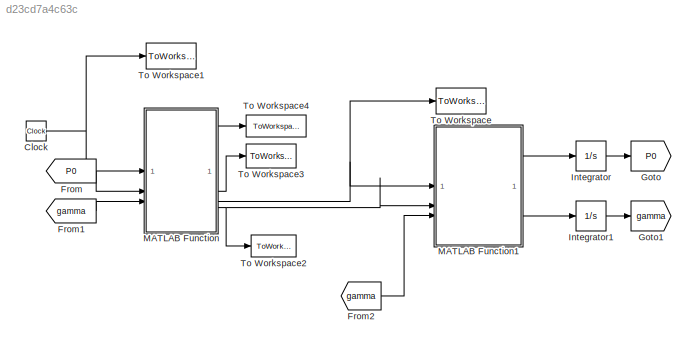
MODEL slx_d23cd7a4c63c
KIND model
CONFIG AbsTol = auto
CONFIG EnableMultiTasking = off
CONFIG FixedStep = auto
CONFIG MaxStep = auto
CONFIG MinStep = auto
CONFIG RelTol = 1e-3
CONFIG SampleTimeConstraint = Unconstrained
CONFIG SolverName = VariableStepAuto
CONFIG StartTime = 0.0
CONFIG StopTime = 10.0
BLOCK [Clock] Clock
BLOCK [From] From
  GotoTag = P0
BLOCK [From] From1
  GotoTag = gamma
BLOCK [From] From2
  GotoTag = gamma
BLOCK [Goto] Goto
  GotoTag = P0
BLOCK [Goto] Goto1
  GotoTag = gamma
BLOCK [Integrator] Integrator
BLOCK [Integrator] Integrator1
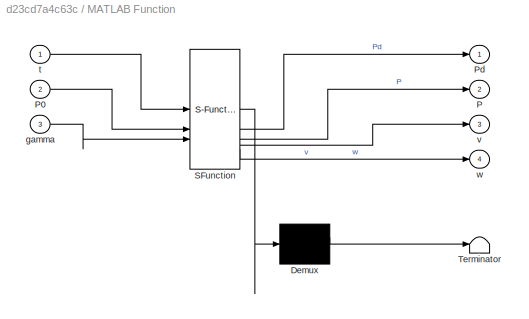
BLOCK [SubSystem] MATLAB Function
  ErrorFcn = Stateflow.Translate.translate
  PermitHierarchicalResolution = ExplicitOnly
  SFBlockType = MATLAB Function
  TreatAsAtomicUnit = on
BLOCK [Demux] MATLAB Function/ Demux 
  Outputs = 1
BLOCK [S-Function] MATLAB Function/ SFunction 
  EnableBusSupport = off
  FunctionName = sf_sfun
  PortCounts = [3 5]
  SFcnIsStateOwnerBlock = off
  SFunctionDeploymentMode = off
  Tag = Stateflow S-Function 2
BLOCK [Terminator] MATLAB Function/ Terminator 
BLOCK [Outport] MATLAB Function/P
  Port = 2
BLOCK [Inport] MATLAB Function/P0
  Port = 2
BLOCK [Outport] MATLAB Function/Pd
BLOCK [Inport] MATLAB Function/gamma
  Port = 3
BLOCK [Inport] MATLAB Function/t
BLOCK [Outport] MATLAB Function/v
  Port = 3
BLOCK [Outport] MATLAB Function/w
  Port = 4
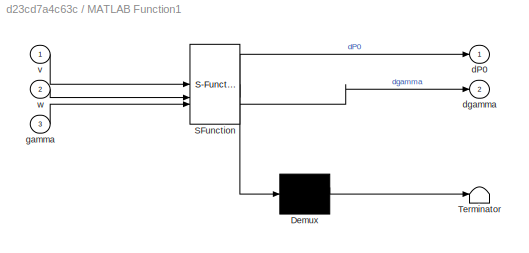
BLOCK [SubSystem] MATLAB Function1
  ErrorFcn = Stateflow.Translate.translate
  PermitHierarchicalResolution = ExplicitOnly
  SFBlockType = MATLAB Function
  TreatAsAtomicUnit = on
BLOCK [Demux] MATLAB Function1/ Demux 
  Outputs = 1
BLOCK [S-Function] MATLAB Function1/ SFunction 
  EnableBusSupport = off
  FunctionName = sf_sfun
  PortCounts = [3 3]
  SFcnIsStateOwnerBlock = off
  SFunctionDeploymentMode = off
  Tag = Stateflow S-Function 1
BLOCK [Terminator] MATLAB Function1/ Terminator 
BLOCK [Outport] MATLAB Function1/dP0
BLOCK [Outport] MATLAB Function1/dgamma
  Port = 2
BLOCK [Inport] MATLAB Function1/gamma
  Port = 3
BLOCK [Inport] MATLAB Function1/v
BLOCK [Inport] MATLAB Function1/w
  Port = 2
BLOCK [ToWorkspace] To Workspace
  FixptAsFi = on
  MaxDataPoints = inf
  SampleTime = -1
  VariableName = v
BLOCK [ToWorkspace] To Workspace1
  FixptAsFi = on
  MaxDataPoints = inf
  SampleTime = -1
  VariableName = t
BLOCK [ToWorkspace] To Workspace2
  FixptAsFi = on
  MaxDataPoints = inf
  SampleTime = -1
  VariableName = w
BLOCK [ToWorkspace] To Workspace3
  FixptAsFi = on
  MaxDataPoints = inf
  SampleTime = -1
  VariableName = P
BLOCK [ToWorkspace] To Workspace4
  FixptAsFi = on
  MaxDataPoints = inf
  SampleTime = -1
  VariableName = Pd
NET Clock:1 -> MATLAB Function:1, To Workspace1:1
LINE From1:1 -> MATLAB Function:3
LINE From2:1 -> MATLAB Function1:3
LINE From:1 -> MATLAB Function:2
LINE Integrator1:1 -> Goto1:1
LINE Integrator:1 -> Goto:1
LINE MATLAB Function1:1 -> Integrator:1
LINE MATLAB Function1:2 -> Integrator1:1
LINE MATLAB Function:1 -> To Workspace4:1
LINE MATLAB Function:2 -> To Workspace3:1
NET MATLAB Function:3 -> MATLAB Function1:1, To Workspace:1
NET MATLAB Function:4 -> MATLAB Function1:2, To Workspace2:1
note: NET lines group one-source signal fan-out (src -> all destinations, sorted); 1:1 wires keep LINE
CHART MATLAB Function1 states=1 transitions=1
  STATE_LABEL 'eML_blk_kernel()'
  STATE_LABEL 'SCRIPT:\nfunction [dP0, dgamma] = SNL(v, w, gamma)\ndP0 = [v*cos(gamma); v*sin(gamma)];\ndgamma = w;\n'
CHART MATLAB Function states=1 transitions=1
  STATE_LABEL 'eML_blk_kernel()'
  STATE_LABEL 'SCRIPT:\nfunction [Pd, P, v, w] = POut(t, P0, gamma)\n% Control PD del unicíclo tomando punto por fuera\n\n% Parámetros del controlador\nd  = 0.1;     % Distancia del punto por fuera [m]\nkp = 2;       % Ganancia proporcional\n\n% Trayectoria deseada (circunferencia)\nT  = 40;\nb  = 2*pi/T;\n\nPd  = [cos(b*t); sin(b*t)];                 % Posición deseada\ndPd = [-b*sin(b*t); b*cos(b*t)];            % Velocida...<+423ch>'
CHART  states=0 transitions=0
CHART  states=0 transitions=0
